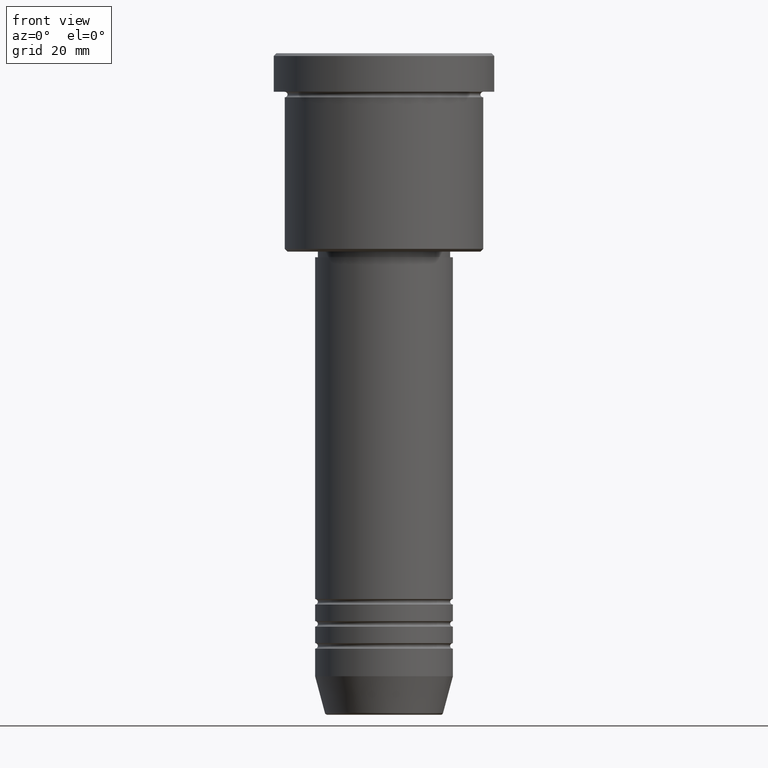
[diagram: clean part render]
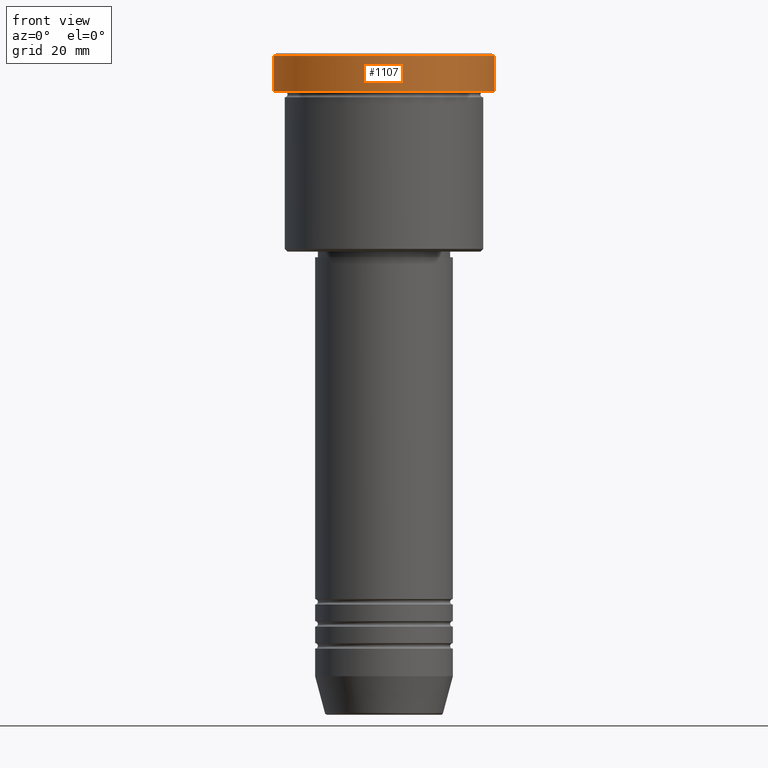
[diagram: same view with one face highlighted and labeled with its STEP entity id]
A machine part, front view. The second image highlights one B-rep face of the part: STEP entity #1107.
In plain terms, the highlighted cylindrical surface (partial cylindrical patch) has radius 20 mm, axis along (-0, -0, 1).
Its self-contained STEP definition (entity closure, byte-faithful):
#47 = DIRECTION ( 'NONE',  ( -0.000000000000000000, -0.000000000000000000, 1.000000000000000000 ) ) ;
#72 = VERTEX_POINT ( 'NONE', #877 ) ;
#73 = CARTESIAN_POINT ( 'NONE',  ( 0.000000000000000000, 0.000000000000000000, 0.000000000000000000 ) ) ;
#115 = DIRECTION ( 'NONE',  ( 1.000000000000000000, 0.000000000000000000, 0.000000000000000000 ) ) ;
#118 = VECTOR ( 'NONE', #495, 1000.000000000000000 ) ;
#157 = CIRCLE ( 'NONE', #608, 20.00000000000000000 ) ;
#210 = CARTESIAN_POINT ( 'NONE',  ( -20.00000000000000000, 2.449293598294706513E-15, -0.5000000000000108802 ) ) ;
#251 = LINE ( 'NONE', #792, #118 ) ;
#300 = CARTESIAN_POINT ( 'NONE',  ( 0.000000000000000000, 0.000000000000000000, -6.999999999999995559 ) ) ;
#304 = EDGE_CURVE ( 'NONE', #72, #397, #875, .T. ) ;
#397 = VERTEX_POINT ( 'NONE', #210 ) ;
#488 = CARTESIAN_POINT ( 'NONE',  ( -20.00000000000000000, 2.449293598294706513E-15, 0.000000000000000000 ) ) ;
#495 = DIRECTION ( 'NONE',  ( -0.000000000000000000, -0.000000000000000000, 1.000000000000000000 ) ) ;
#513 = ORIENTED_EDGE ( 'NONE', *, *, #749, .T. ) ;
#514 = FACE_OUTER_BOUND ( 'NONE', #845, .T. ) ;
#519 = VECTOR ( 'NONE', #47, 1000.000000000000000 ) ;
#548 = CARTESIAN_POINT ( 'NONE',  ( 20.00000000000000000, 0.000000000000000000, -6.999999999999995559 ) ) ;
#559 = DIRECTION ( 'NONE',  ( 1.000000000000000000, 0.000000000000000000, 0.000000000000000000 ) ) ;
#565 = EDGE_CURVE ( 'NONE', #1152, #397, #705, .T. ) ;
#578 = DIRECTION ( 'NONE',  ( 0.000000000000000000, 0.000000000000000000, -1.000000000000000000 ) ) ;
#601 = ORIENTED_EDGE ( 'NONE', *, *, #304, .F. ) ;
#608 = AXIS2_PLACEMENT_3D ( 'NONE', #300, #1034, #559 ) ;
#672 = VERTEX_POINT ( 'NONE', #548 ) ;
#673 = DIRECTION ( 'NONE',  ( 1.000000000000000000, 0.000000000000000000, 0.000000000000000000 ) ) ;
#674 = EDGE_CURVE ( 'NONE', #72, #672, #157, .T. ) ;
#691 = AXIS2_PLACEMENT_3D ( 'NONE', #73, #737, #115 ) ;
#705 = CIRCLE ( 'NONE', #722, 20.00000000000000000 ) ;
#722 = AXIS2_PLACEMENT_3D ( 'NONE', #1130, #578, #673 ) ;
#737 = DIRECTION ( 'NONE',  ( -0.000000000000000000, -0.000000000000000000, 1.000000000000000000 ) ) ;
#749 = EDGE_CURVE ( 'NONE', #672, #1152, #251, .T. ) ;
#792 = CARTESIAN_POINT ( 'NONE',  ( 20.00000000000000000, 0.000000000000000000, 0.000000000000000000 ) ) ;
#845 = EDGE_LOOP ( 'NONE', ( #601, #996, #513, #931 ) ) ;
#875 = LINE ( 'NONE', #488, #519 ) ;
#877 = CARTESIAN_POINT ( 'NONE',  ( -20.00000000000000000, 2.449293598294706513E-15, -6.999999999999995559 ) ) ;
#896 = CYLINDRICAL_SURFACE ( 'NONE', #691, 20.00000000000000000 ) ;
#909 = CARTESIAN_POINT ( 'NONE',  ( 20.00000000000000000, 0.000000000000000000, -0.5000000000000108802 ) ) ;
#931 = ORIENTED_EDGE ( 'NONE', *, *, #565, .T. ) ;
#996 = ORIENTED_EDGE ( 'NONE', *, *, #674, .T. ) ;
#1034 = DIRECTION ( 'NONE',  ( -0.000000000000000000, -0.000000000000000000, 1.000000000000000000 ) ) ;
#1107 = ADVANCED_FACE ( 'NONE', ( #514 ), #896, .T. ) ;
#1130 = CARTESIAN_POINT ( 'NONE',  ( 0.000000000000000000, 0.000000000000000000, -0.5000000000000108802 ) ) ;
#1152 = VERTEX_POINT ( 'NONE', #909 ) ;